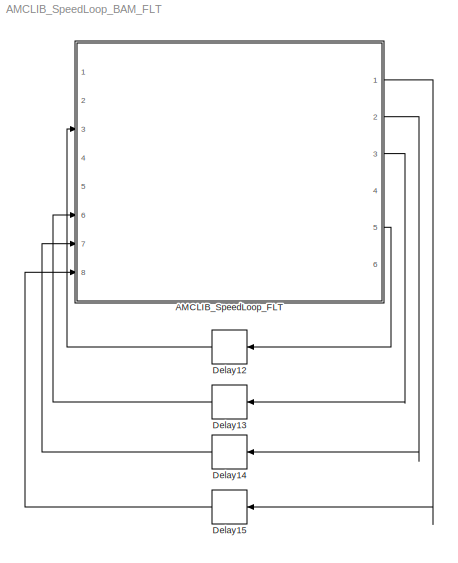
MODEL AMCLIB_SpeedLoop_BAM_FLT
KIND model
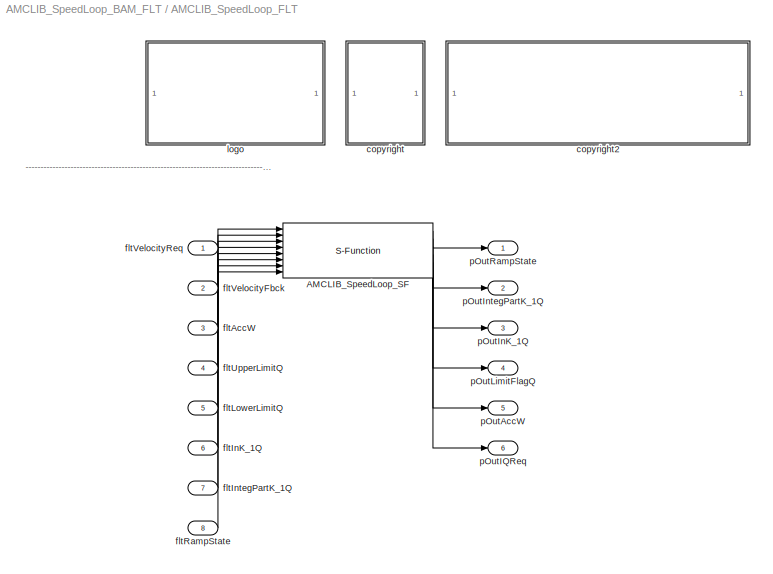
BLOCK [SubSystem] AMCLIB_SpeedLoop_FLT
  Ports = [8, 6]
  RequestExecContextInheritance = off
  SID = 1
BLOCK [S-Function] AMCLIB_SpeedLoop_FLT/AMCLIB_SpeedLoop_SF
  EnableBusSupport = off
  FunctionName = AMCLIB_SpeedLoop_SF_FLT
  Parameters = fltLambdaW,fltPropGainQ,fltIntegGainQ,fltRampUp,fltRampDown
  Ports = [8, 6]
  SID = 4
BLOCK [SubSystem] AMCLIB_SpeedLoop_FLT/<copyright redacted>
  Ports = []
  RequestExecContextInheritance = off
  SID = 23
BLOCK [SubSystem] AMCLIB_SpeedLoop_FLT/copyright2
  Ports = []
  RequestExecContextInheritance = off
  SID = 26
BLOCK [Inport] AMCLIB_SpeedLoop_FLT/fltAccW
  IconDisplay = Port number
  Port = 3
  SID = 7
BLOCK [Inport] AMCLIB_SpeedLoop_FLT/fltInK_1Q
  IconDisplay = Port number
  Port = 6
  SID = 10
BLOCK [Inport] AMCLIB_SpeedLoop_FLT/fltIntegPartK_1Q
  IconDisplay = Port number
  Port = 7
  SID = 11
BLOCK [Inport] AMCLIB_SpeedLoop_FLT/fltLowerLimitQ
  IconDisplay = Port number
  Port = 5
  SID = 9
BLOCK [Inport] AMCLIB_SpeedLoop_FLT/fltRampState
  IconDisplay = Port number
  Port = 8
  SID = 12
BLOCK [Inport] AMCLIB_SpeedLoop_FLT/fltUpperLimitQ
  IconDisplay = Port number
  Port = 4
  SID = 8
BLOCK [Inport] AMCLIB_SpeedLoop_FLT/fltVelocityFbck
  IconDisplay = Port number
  Port = 2
  SID = 6
BLOCK [Inport] AMCLIB_SpeedLoop_FLT/fltVelocityReq
  IconDisplay = Port number
  SID = 5
BLOCK [SubSystem] AMCLIB_SpeedLoop_FLT/logo
  Ports = []
  RequestExecContextInheritance = off
  SID = 19
BLOCK [Outport] AMCLIB_SpeedLoop_FLT/pOutAccW
  IconDisplay = Port number
  Port = 5
  SID = 17
BLOCK [Outport] AMCLIB_SpeedLoop_FLT/pOutIQReq
  IconDisplay = Port number
  Port = 6
  SID = 18
BLOCK [Outport] AMCLIB_SpeedLoop_FLT/pOutInK_1Q
  IconDisplay = Port number
  Port = 3
  SID = 15
BLOCK [Outport] AMCLIB_SpeedLoop_FLT/pOutIntegPartK_1Q
  IconDisplay = Port number
  Port = 2
  SID = 14
BLOCK [Outport] AMCLIB_SpeedLoop_FLT/pOutLimitFlagQ
  IconDisplay = Port number
  Port = 4
  SID = 16
BLOCK [Outport] AMCLIB_SpeedLoop_FLT/pOutRampState
  IconDisplay = Port number
  SID = 13
BLOCK [Delay] Delay12
  DelayLength = 1
  InitialCondition = 0
  InputPortMap = u0
  Ports = [1, 1]
  SID = 29
BLOCK [Delay] Delay13
  DelayLength = 1
  InitialCondition = 0
  InputPortMap = u0
  Ports = [1, 1]
  SID = 30
BLOCK [Delay] Delay14
  DelayLength = 1
  InitialCondition = 0
  InputPortMap = u0
  Ports = [1, 1]
  SID = 31
BLOCK [Delay] Delay15
  DelayLength = 1
  InitialCondition = 0
  InputPortMap = u0
  Ports = [1, 1]
  SID = 32
ANNOTATION AMCLIB_SpeedLoop_FLT: ---------------------------------------------------------------------------------------------------------------------------------------------------------------------------------------------------
LINE AMCLIB_SpeedLoop_FLT/AMCLIB_SpeedLoop_SF:1 -> AMCLIB_SpeedLoop_FLT/pOutRampState:1
LINE AMCLIB_SpeedLoop_FLT/AMCLIB_SpeedLoop_SF:2 -> AMCLIB_SpeedLoop_FLT/pOutIntegPartK_1Q:1
LINE AMCLIB_SpeedLoop_FLT/AMCLIB_SpeedLoop_SF:3 -> AMCLIB_SpeedLoop_FLT/pOutInK_1Q:1
LINE AMCLIB_SpeedLoop_FLT/AMCLIB_SpeedLoop_SF:4 -> AMCLIB_SpeedLoop_FLT/pOutLimitFlagQ:1
LINE AMCLIB_SpeedLoop_FLT/AMCLIB_SpeedLoop_SF:5 -> AMCLIB_SpeedLoop_FLT/pOutAccW:1
LINE AMCLIB_SpeedLoop_FLT/AMCLIB_SpeedLoop_SF:6 -> AMCLIB_SpeedLoop_FLT/pOutIQReq:1
LINE AMCLIB_SpeedLoop_FLT/fltAccW:1 -> AMCLIB_SpeedLoop_FLT/AMCLIB_SpeedLoop_SF:3
LINE AMCLIB_SpeedLoop_FLT/fltInK_1Q:1 -> AMCLIB_SpeedLoop_FLT/AMCLIB_SpeedLoop_SF:6
LINE AMCLIB_SpeedLoop_FLT/fltIntegPartK_1Q:1 -> AMCLIB_SpeedLoop_FLT/AMCLIB_SpeedLoop_SF:7
LINE AMCLIB_SpeedLoop_FLT/fltLowerLimitQ:1 -> AMCLIB_SpeedLoop_FLT/AMCLIB_SpeedLoop_SF:5
LINE AMCLIB_SpeedLoop_FLT/fltRampState:1 -> AMCLIB_SpeedLoop_FLT/AMCLIB_SpeedLoop_SF:8
LINE AMCLIB_SpeedLoop_FLT/fltUpperLimitQ:1 -> AMCLIB_SpeedLoop_FLT/AMCLIB_SpeedLoop_SF:4
LINE AMCLIB_SpeedLoop_FLT/fltVelocityFbck:1 -> AMCLIB_SpeedLoop_FLT/AMCLIB_SpeedLoop_SF:2
LINE AMCLIB_SpeedLoop_FLT/fltVelocityReq:1 -> AMCLIB_SpeedLoop_FLT/AMCLIB_SpeedLoop_SF:1
LINE AMCLIB_SpeedLoop_FLT:1 -> Delay15:1
LINE AMCLIB_SpeedLoop_FLT:2 -> Delay14:1
LINE AMCLIB_SpeedLoop_FLT:3 -> Delay13:1
LINE AMCLIB_SpeedLoop_FLT:5 -> Delay12:1
LINE Delay12:1 -> AMCLIB_SpeedLoop_FLT:3
LINE Delay13:1 -> AMCLIB_SpeedLoop_FLT:6
LINE Delay14:1 -> AMCLIB_SpeedLoop_FLT:7
LINE Delay15:1 -> AMCLIB_SpeedLoop_FLT:8
